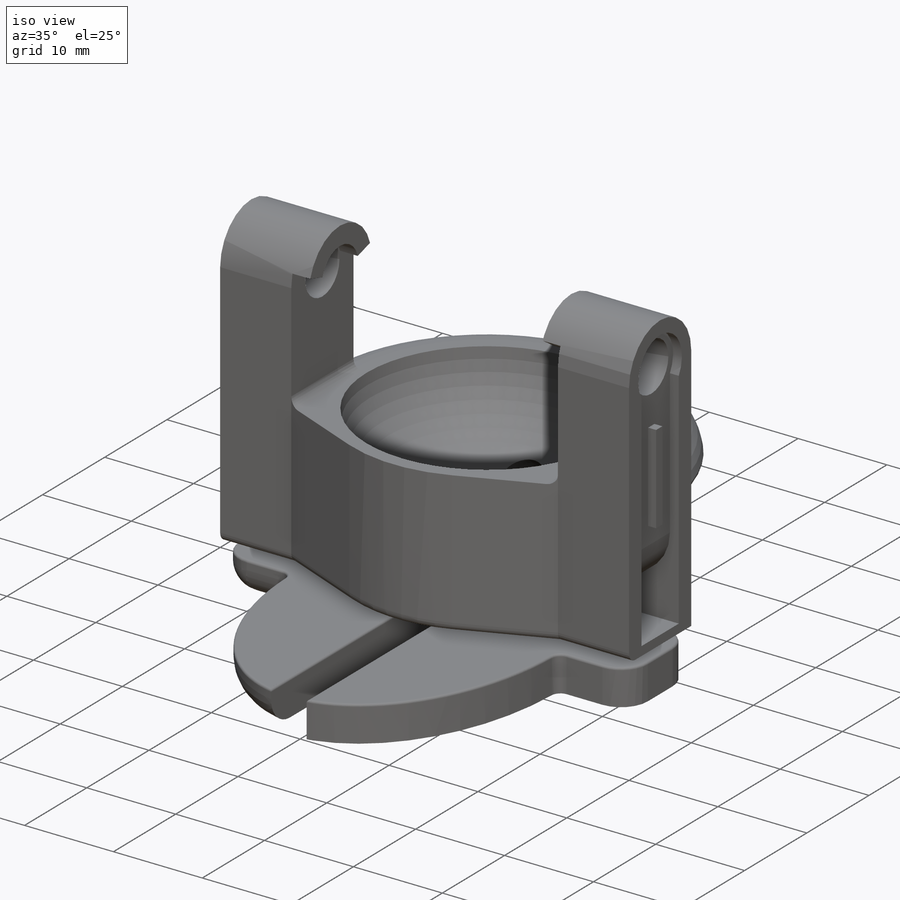
[diagram: iso view]
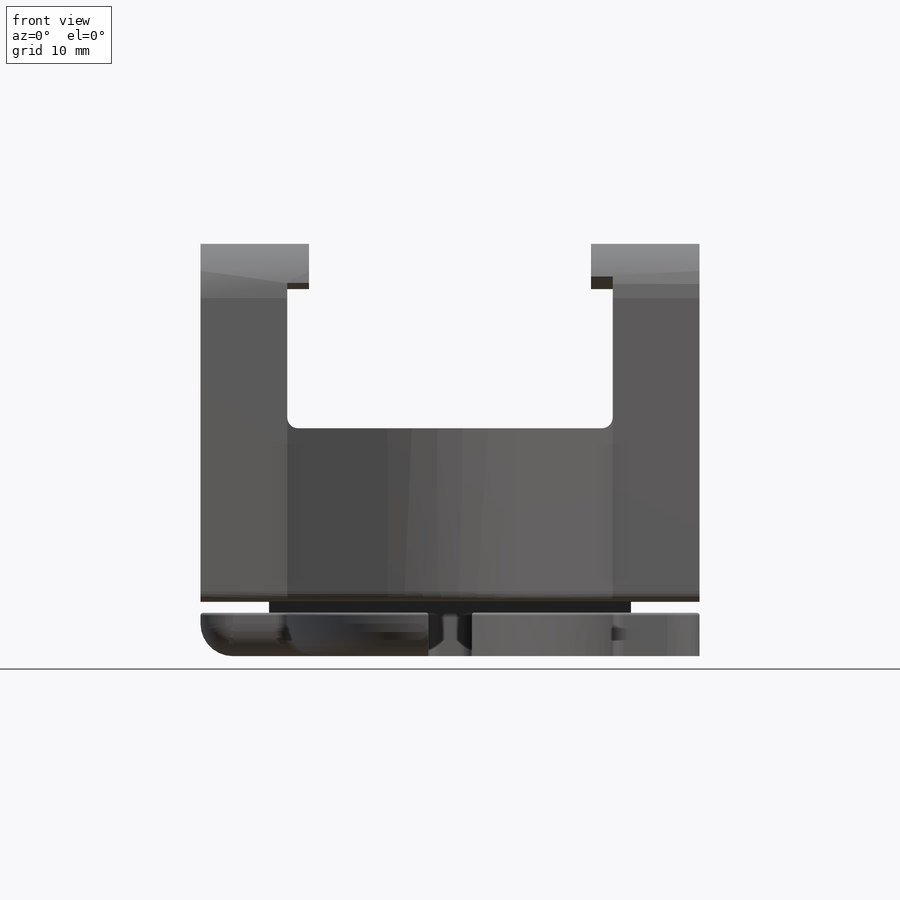
[diagram: front view]
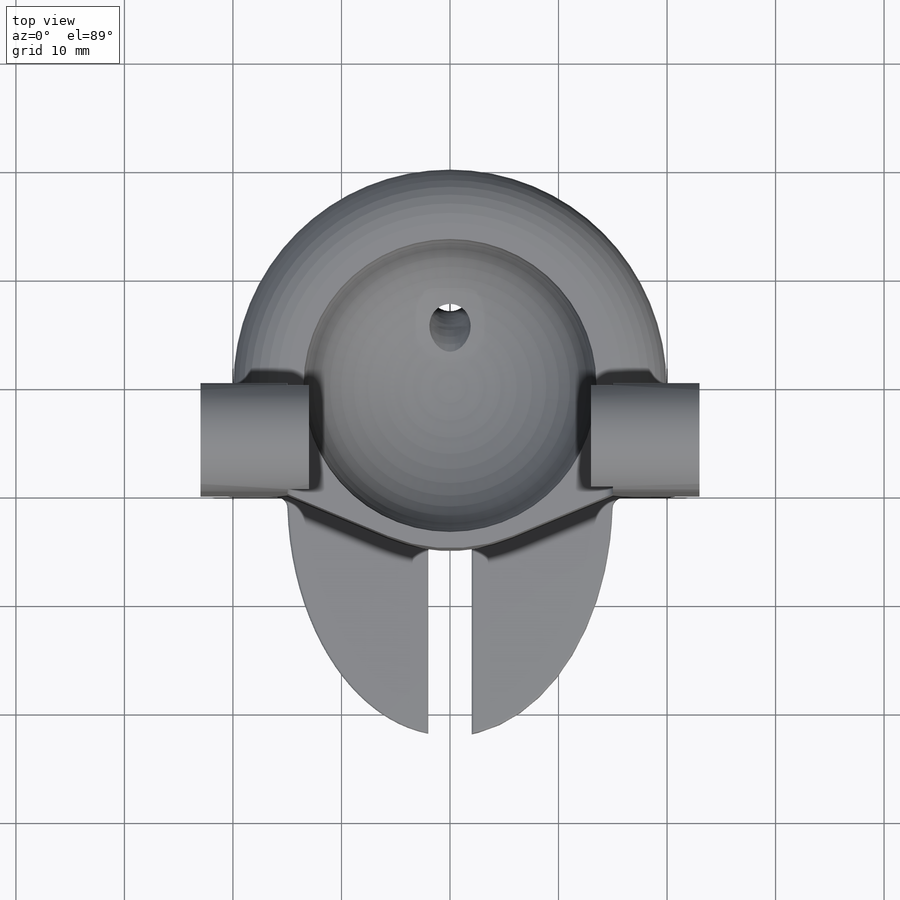
[diagram: top view]
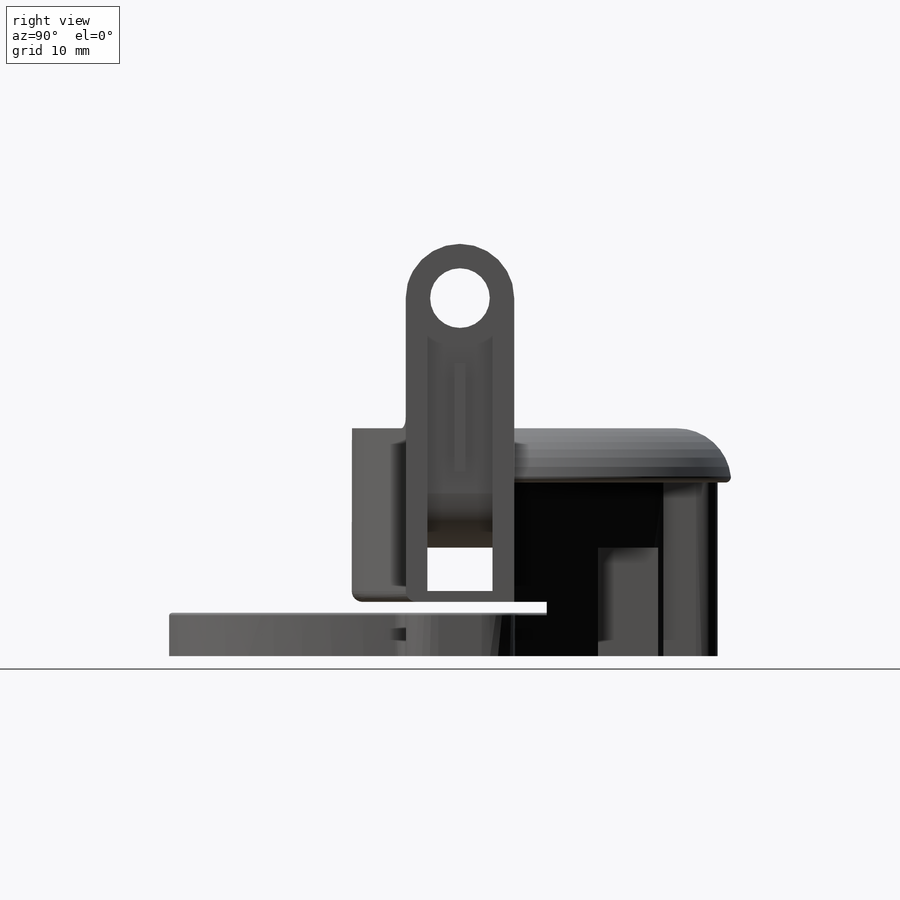
[diagram: right view]
SOLIDWORKS PART (.sldprt)
format: sldprt  version: not decoded by parser v0  size: 910,848 bytes
history: native  units: mm
features: sketch x31, extrude x15, fillet x15, cut_extrude x10, sweep x2, material x1, revolve x1 (+16 scaffold rows collapsed)
feature tree (91):
  scaffold x16  (default folders/planes/origin — collapsed)
  material  "Material <not specified>"
  sketch  "Sketch1"  dims[D1=6.0mm]
  revolve  "Revolve1"  Angle=360deg
  sketch  "Sketch2"  dims[D1=8.0mm]
  extrude  "Boss-Extrude1"  Depth=12mm
  sketch  "Sketch24"
  extrude  "Boss-Extrude5"  Depth=16mm
  sketch  "Sketch8"  dims[D1=0.0mm]
  extrude  "Boss-Extrude3"  Depth=8mm
  sketch  "Sketch13"  dims[D1=0.0mm]
  extrude  "Boss-Extrude4"  Depth=8mm
  sketch  "Sketch14"  dims[D1=2.75mm]
  cut_extrude  "Cut-Extrude27"  [1 undecoded]
  sketch  "Sketch15"  dims[D1=3.25mm]
  cut_extrude  "Cut-Extrude3"  Depth=1mm
  sketch  "Sketch16"  dims[D1=3.0mm]
  cut_extrude  "Cut-Extrude4"  Depth=1mm
  sketch  "Sketch18"  dims[D1=6.0mm]
  cut_extrude  "Cut-Extrude5"  Depth=1mm
  sketch  "Sketch19"  dims[D1=6.0mm]
  cut_extrude  "Cut-Extrude6"  Depth=1mm
  sketch  "Sketch22"  dims[D1=~3.962229mm]
  cut_extrude  "Cut-Extrude8"  [1 undecoded]
  sketch  "Sketch28"
  extrude  "Boss-Extrude6"  Depth=11mm
  fillet  "Fillet17"  Radius=1mm
  sketch  "Sketch52"
  sketch  "Sketch53"  dims[D1=3.0mm]
  sketch  "Sketch32"
  extrude  "Boss-Extrude7"  Depth=2mm
  sketch  "Sketch33"
  extrude  "Boss-Extrude8"  Depth=2mm
  sketch  "Sketch37"  dims[D1=0.0mm]
  extrude  "Boss-Extrude9"  Depth=5mm
  sketch  "Sketch38"  dims[D1=5.0mm]
  extrude  "Boss-Extrude10"  Depth=10mm
  sketch  "Sketch40"  dims[D1=15.0mm]
  extrude  "Boss-Extrude11"  Depth=4mm
  sketch  "Sketch41"  dims[D1=4.0mm]
  cut_extrude  "Cut-Extrude19"  [1 undecoded]
  sketch  "Sketch48"
  extrude  "Boss-Extrude14"  Depth=4mm
  sketch  "Sketch49"
  extrude  "Boss-Extrude15"  Depth=4mm
  fillet  "Fillet26"  Radius=3mm
  sketch  "Sketch42"  dims[D1=0.0mm]
  cut_extrude  "Cut-Extrude21"  Depth=3mm
  sketch  "Sketch44"  dims[D1=10.0mm]
  extrude  "Boss-Extrude12"  Depth=0.9mm
  sketch  "Sketch45"  dims[D1=1.0mm]
  extrude  "Boss-Extrude13"  Depth=0.9mm
  sketch  "Sketch46"  dims[D1=2.2mm]
  sketch  "3DSketch1"  dims[c1.D1=~10.000624mm c2.D1=6.0mm c3.D1=6.5mm c4.D1=~89.108681deg]
  sweep  "Cut-Sweep3"
  sketch  "Sketch60"  dims[D1=5.0mm]
  extrude  "Boss-Extrude16"  Depth=16mm
  sketch  "Sketch58"  dims[D1=3.0mm]
  sweep  "Sweep1"
  fillet  "Fillet43"  Radius=2mm
  fillet  "Fillet44"  Radius=2mm
  fillet  "Fillet28"  Radius=1mm
  fillet  "Fillet29"  Radius=0.25mm
  fillet  "Fillet30"  Radius=3mm
  fillet  "Fillet32"  Radius=0.75mm
  fillet  "Fillet36"  Radius=0.5mm
  fillet  "Fillet37"  Radius=1mm
  sketch  "Sketch61"  dims[D1=6.0mm]
  cut_extrude  "Cut-Extrude28"  [1 undecoded]
  sketch  "Sketch62"
  cut_extrude  "Cut-Extrude29"  [1 undecoded]
  fillet  "Fillet45"  Radius=10mm
  fillet  "Fillet46"  Radius=5mm
  fillet  "Fillet47"  Radius=5mm
  fillet  "Fillet48"  Radius=5mm
  fillet  "Fillet42"  Radius=3mm
decode coverage: 59 of 74 modeling features carry decoded parameters
note: ~ marks probable driven/reference dimensions
note: 5 parameter values undecoded
summary: no parameter record found for 5 features
note: suppression state not decoded; provenance and decode notes live in map.json
